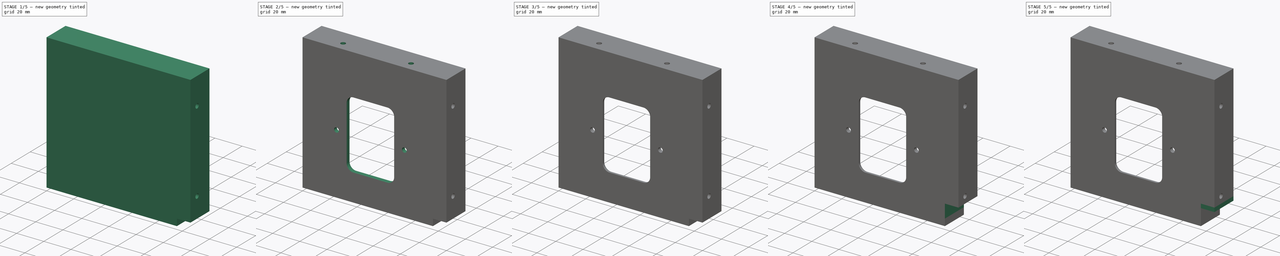
[diagram: build sequence overview — one tinted view per stage of 5, left to right]
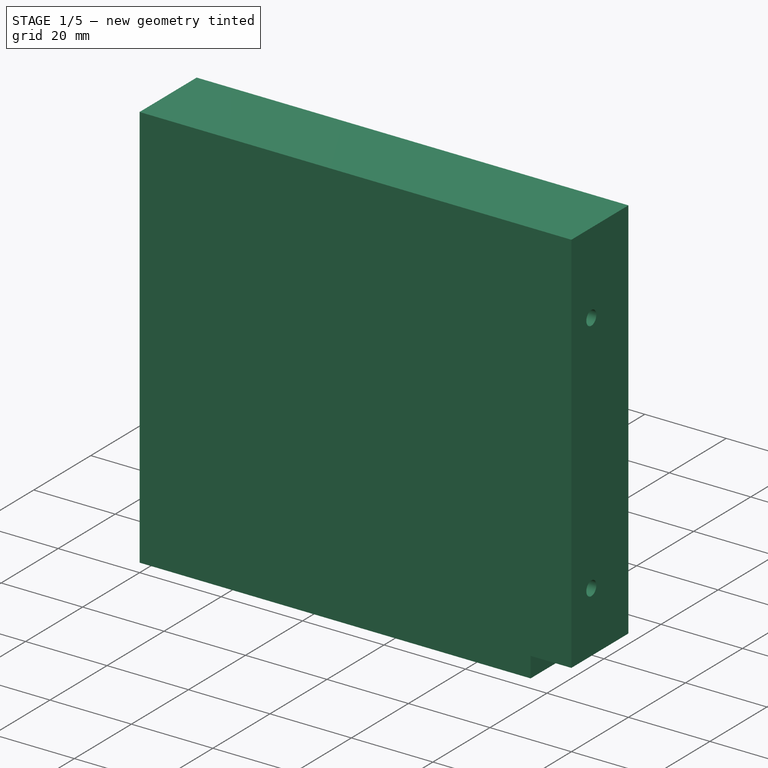
[diagram: stage 1 of 5 — iso view after this stage's code; geometry added in this stage tinted green]
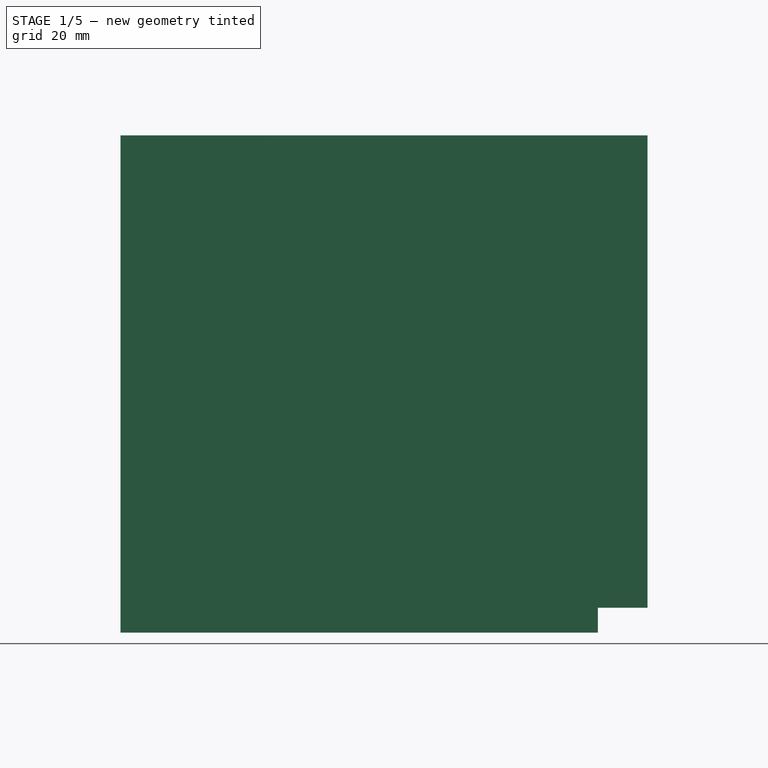
[diagram: stage 1 of 5 — front view after this stage's code; geometry added in this stage tinted green]
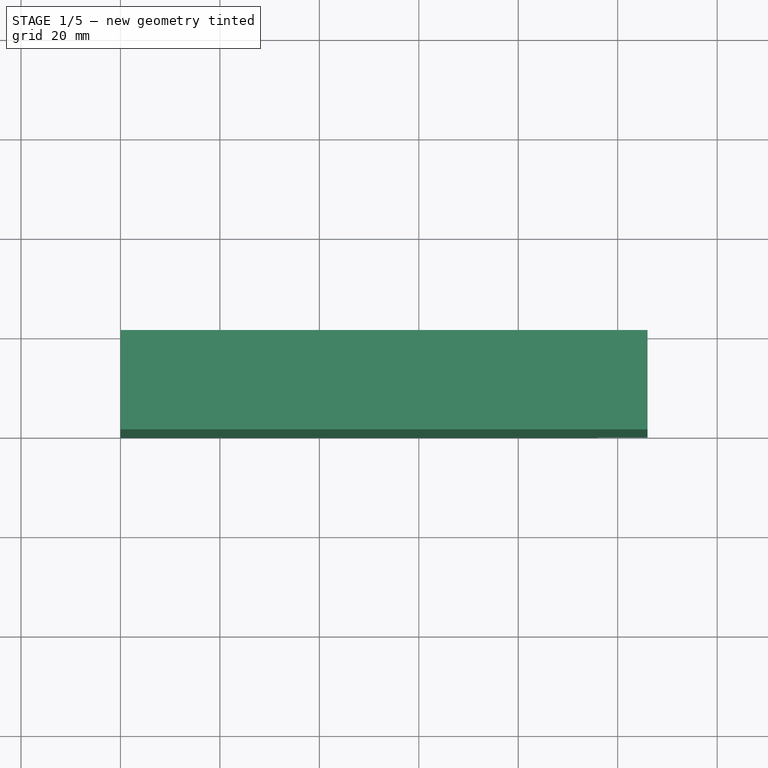
[diagram: stage 1 of 5 — top view after this stage's code; geometry added in this stage tinted green]
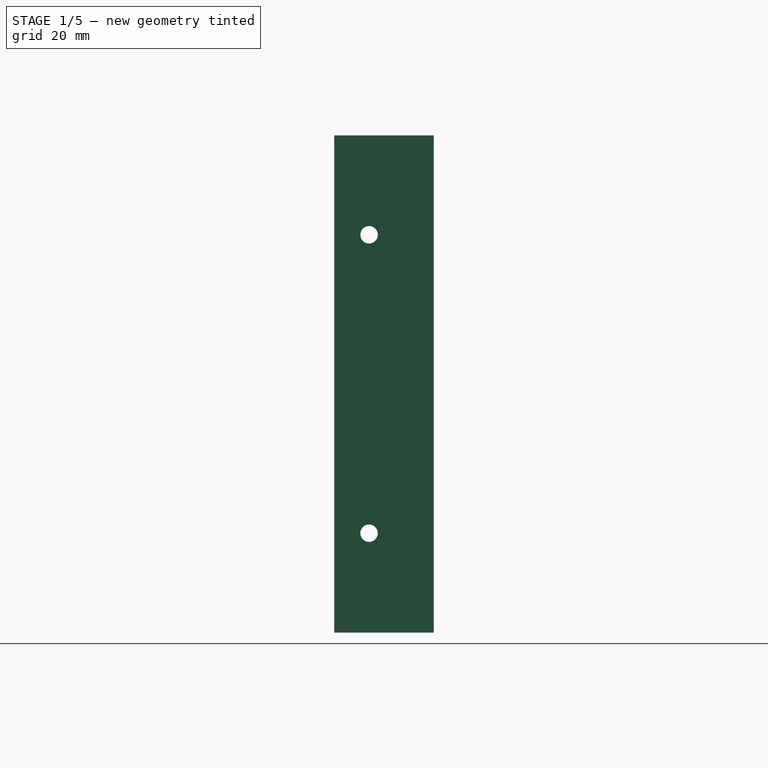
[diagram: stage 1 of 5 — right view after this stage's code; geometry added in this stage tinted green]
FCSTD DOCUMENT  (FreeCAD 0.21R33771 (Git))
Label: back_panel_adpter
License: All rights reserved
LicenseURL: http://en.wikipedia.org/wiki/All_rights_reserved
objects: PartDesign::Pocket×8, Sketcher::SketchObject×7, PartDesign::Pad×6, PartDesign::Fillet×5, PartDesign::Body×1
note: 46 computed .brp shape members not serialized (recipe doc carries the construction recipe); baked Part::Feature solids carry a one-line shape summary decoded from their .brp

FEATURE [Sketcher::SketchObject] Sketch
  FullyConstrained = true
  MapMode = 5
  Support = -> [XY_Plane]
  sketch-geometry (4):
    g0: LineSegment StartX=0 StartY=0 StartZ=0 EndX=96 EndY=0 EndZ=0
    g1: LineSegment StartX=96 StartY=0 StartZ=0 EndX=96 EndY=10 EndZ=0
    g2: LineSegment StartX=96 StartY=10 StartZ=0 EndX=0 EndY=10 EndZ=0
    g3: LineSegment StartX=0 StartY=10 StartZ=0 EndX=0 EndY=0 EndZ=0
  constraints (11):
    c: Coincident(g0,g1)
    c: Coincident(g1,g2)
    c: Coincident(g2,g3)
    c: Coincident(g3,g0)
    c: Horizontal(g0)
    c: Horizontal(g2)
    c: Vertical(g1)
    c: Vertical(g3)
    c: Coincident(g0,g-1)
    c: DistanceX(g0,g0) = 96
    c: DistanceY(g1,g1) = 10
FEATURE [PartDesign::Pad] Pad
  Direction = (0,0,1)
  Length = 100
  Length2 = 10
  Profile = -> Sketch
  ReferenceAxis = -> Sketch [N_Axis]
  Type = 0
FEATURE [Sketcher::SketchObject] Sketch001
  FullyConstrained = true
  MapMode = 5
  Placement = pos=(96,0,0) rot=(0.57735,0.57735,0.57735;2.0944rad)
  Support = -> [Pad]
  sketch-geometry (4):
    g0: LineSegment StartX=0 StartY=100 StartZ=0 EndX=10 EndY=100 EndZ=0
    g1: LineSegment StartX=10 StartY=100 StartZ=0 EndX=10 EndY=5 EndZ=0
    g2: LineSegment StartX=10 StartY=5 StartZ=0 EndX=0 EndY=5 EndZ=0
    g3: LineSegment StartX=0 StartY=5 StartZ=0 EndX=0 EndY=100 EndZ=0
  constraints (12):
    c: Coincident(g0,g1)
    c: Coincident(g1,g2)
    c: Coincident(g2,g3)
    c: Coincident(g3,g0)
    c: Horizontal(g0)
    c: Horizontal(g2)
    c: Vertical(g1)
    c: Vertical(g3)
    c: PointOnObject(g0,g-2)
    c: DistanceY(g-1,g2) = 5
    c: DistanceX(g2,g2) = 10
    c: DistanceY(g1,g1) = 95
FEATURE [PartDesign::Pad] Pad001
  BaseFeature = -> Pad
  Direction = (1,0,0)
  Length = 10
  Length2 = 10
  Profile = -> Sketch001
  ReferenceAxis = -> Sketch001 [N_Axis]
  Type = 0
FEATURE [PartDesign::Pad] Pad002
  BaseFeature = -> Pad001
  Direction = (0,1,0)
  Length = 10
  Length2 = 10
  Profile = -> Pad001 [Face7,Face11]
  Type = 0
FEATURE [Sketcher::SketchObject] Sketch002
  FullyConstrained = true
  MapMode = 5
  Placement = pos=(0,0,0) rot=(0.57735,-0.57735,-0.57735;2.0944rad)
  Support = -> [Pad002]
  sketch-geometry (10):
    g0: LineSegment StartX=0 StartY=0 StartZ=0 EndX=-7 EndY=0 EndZ=0
    g1: LineSegment StartX=-7 StartY=0 StartZ=0 EndX=-7 EndY=80 EndZ=0
    g2: LineSegment StartX=-7 StartY=80 StartZ=0 EndX=0 EndY=80 EndZ=0
    g3: LineSegment StartX=0 StartY=80 StartZ=0 EndX=0 EndY=0 EndZ=0
    g4: LineSegment StartX=-7 StartY=80 StartZ=0 EndX=0 EndY=80 EndZ=0
    g5: LineSegment StartX=0 StartY=80 StartZ=0 EndX=0 EndY=20 EndZ=0
    g6: LineSegment StartX=0 StartY=20 StartZ=0 EndX=-7 EndY=20 EndZ=0
    g7: LineSegment StartX=-7 StartY=20 StartZ=0 EndX=-7 EndY=80 EndZ=0
    g8: Circle CenterX=-7 CenterY=80 CenterZ=0 NormalX=0 NormalY=0 NormalZ=1 AngleXU=0 Radius=1.75
    g9: Circle CenterX=-7 CenterY=20 CenterZ=0 NormalX=0 NormalY=0 NormalZ=1 AngleXU=0 Radius=1.75
  constraints (26):
    c: Coincident(g0,g1)
    c: Coincident(g1,g2)
    c: Coincident(g2,g3)
    c: Coincident(g3,g0)
    c: Horizontal(g0)
    c: Horizontal(g2)
    c: Vertical(g1)
    c: Vertical(g3)
    c: Coincident(g0,g-1)
    c: DistanceX(g2,g2) = 7
    c: DistanceY(g3,g3) = 80
    c: Coincident(g4,g5)
    c: Coincident(g5,g6)
    c: Coincident(g6,g7)
    c: Coincident(g7,g4)
    c: Horizontal(g4)
    c: Horizontal(g6)
    c: Vertical(g5)
    c: Vertical(g7)
    c: Coincident(g4,g1)
    c: PointOnObject(g5,g3)
    c: DistanceY(g6,g1) = 60
    c: Coincident(g8,g1)
    c: Coincident(g9,g6)
    c: Equal(g8,g9)
    c: Diameter(g8) = 3.5
FEATURE [PartDesign::Pocket] Pocket
  BaseFeature = -> Pad002
  Direction = (1,0,0)
  Length = 5
  Length2 = 5
  Profile = -> Sketch002
  ReferenceAxis = -> Sketch002 [N_Axis]
  Type = 1
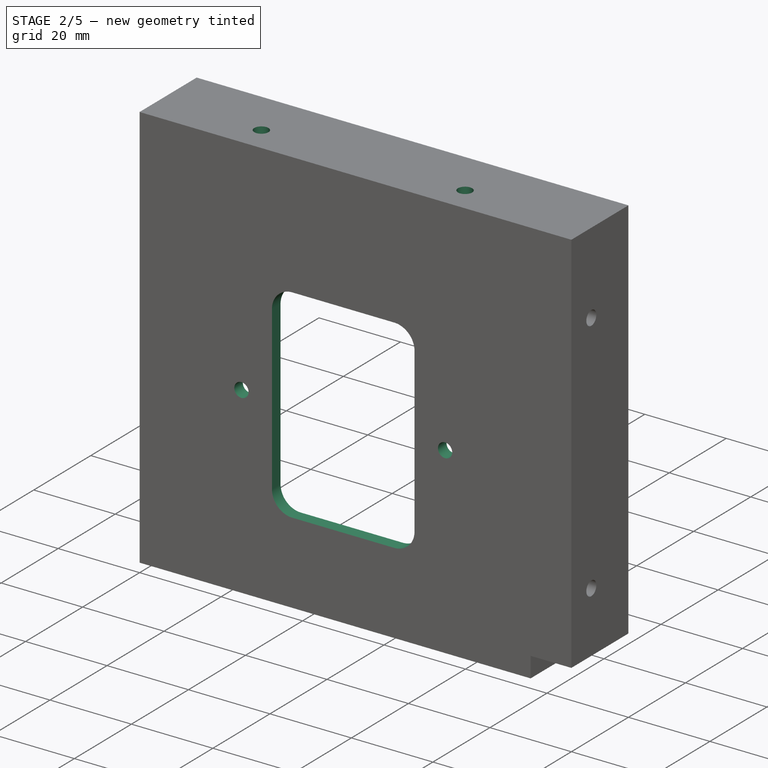
[diagram: stage 2 of 5 — iso view after this stage's code; geometry added in this stage tinted green]
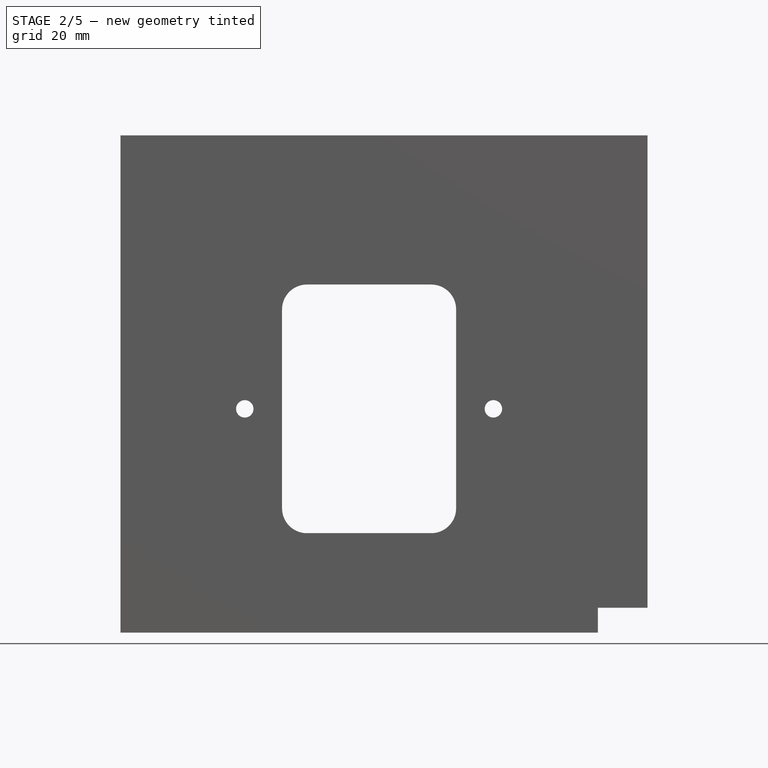
[diagram: stage 2 of 5 — front view after this stage's code; geometry added in this stage tinted green]
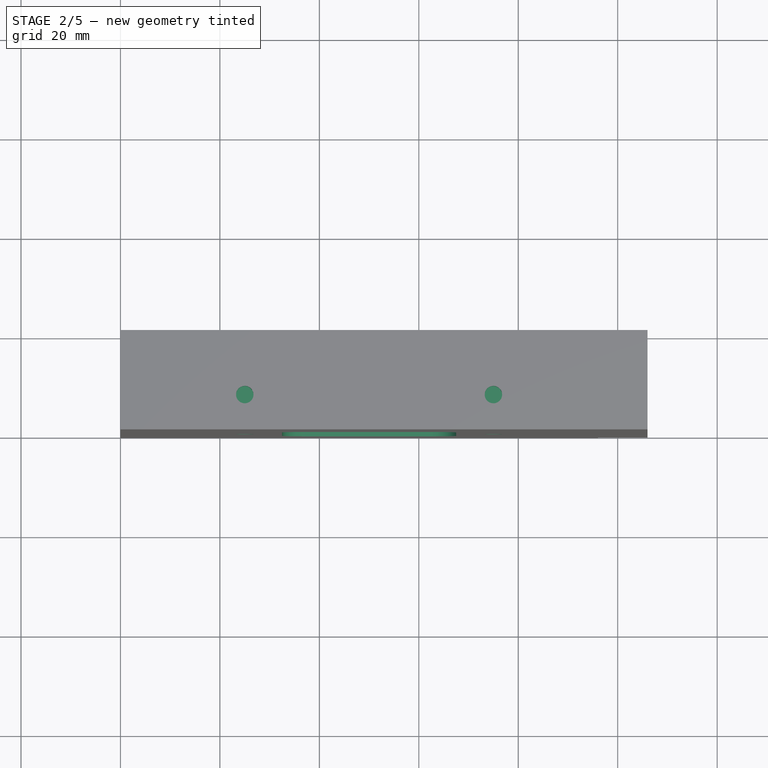
[diagram: stage 2 of 5 — top view after this stage's code; geometry added in this stage tinted green]
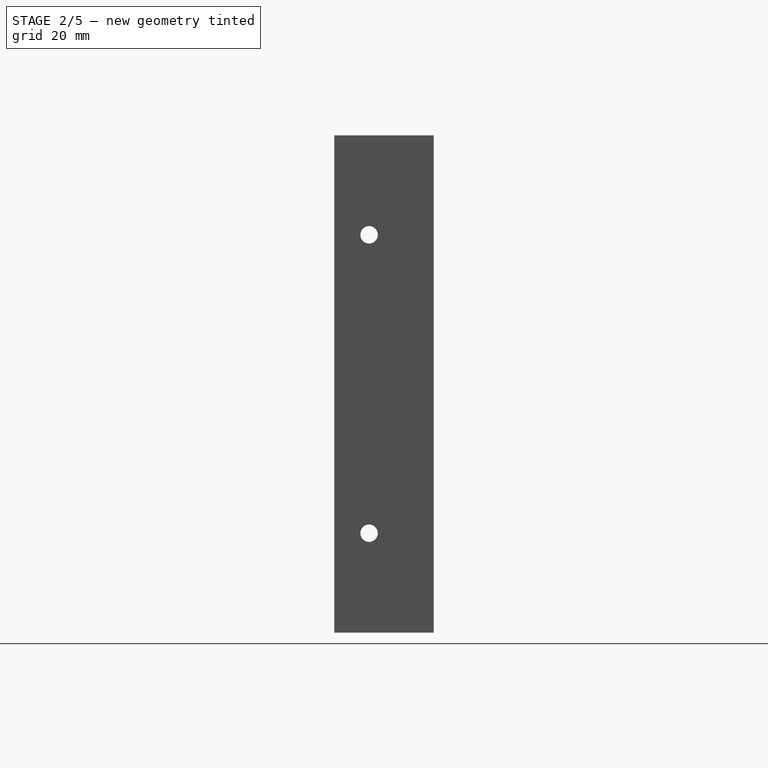
[diagram: stage 2 of 5 — right view after this stage's code; geometry added in this stage tinted green]
FEATURE [Sketcher::SketchObject] Sketch003
  FullyConstrained = true
  MapMode = 5
  Placement = pos=(0,20,0) rot=(0,0.707107,0.707107;3.14159rad)
  Support = -> [Pocket]
  sketch-geometry (4):
    g0: LineSegment StartX=-93 StartY=97 StartZ=0 EndX=-3 EndY=97 EndZ=0
    g1: LineSegment StartX=-3 StartY=97 StartZ=0 EndX=-3 EndY=3 EndZ=0
    g2: LineSegment StartX=-3 StartY=3 StartZ=0 EndX=-93 EndY=3 EndZ=0
    g3: LineSegment StartX=-93 StartY=3 StartZ=0 EndX=-93 EndY=97 EndZ=0
  constraints (12):
    c: Coincident(g0,g1)
    c: Coincident(g1,g2)
    c: Coincident(g2,g3)
    c: Coincident(g3,g0)
    c: Horizontal(g0)
    c: Horizontal(g2)
    c: Vertical(g1)
    c: Vertical(g3)
    c: DistanceX(g1,g-1) = 3
    c: DistanceY(g-1,g1) = 3
    c: DistanceY(g1,g1) = 94
    c: DistanceX(g0,g0) = 90
FEATURE [PartDesign::Pocket] Pocket001
  BaseFeature = -> Pocket
  Direction = (0,-1,2e-16)
  Length = 17
  Length2 = 5
  Profile = -> Sketch003
  ReferenceAxis = -> Sketch003 [N_Axis]
  Type = 0
FEATURE [Sketcher::SketchObject] Sketch004
  FullyConstrained = true
  MapMode = 5
  Placement = pos=(0,20,0) rot=(0,0.707107,0.707107;3.14159rad)
  Support = -> [Pocket001]
  sketch-geometry (4):
    g0: LineSegment StartX=-103 StartY=97 StartZ=0 EndX=-93 EndY=97 EndZ=0
    g1: LineSegment StartX=-93 StartY=97 StartZ=0 EndX=-93 EndY=8 EndZ=0
    g2: LineSegment StartX=-93 StartY=8 StartZ=0 EndX=-103 EndY=8 EndZ=0
    g3: LineSegment StartX=-103 StartY=8 StartZ=0 EndX=-103 EndY=97 EndZ=0
  constraints (12):
    c: Coincident(g0,g1)
    c: Coincident(g1,g2)
    c: Coincident(g2,g3)
    c: Coincident(g3,g0)
    c: Horizontal(g0)
    c: Horizontal(g2)
    c: Vertical(g1)
    c: Vertical(g3)
    c: DistanceX(g2,g2) = 10
    c: DistanceX(g1,g-1) = 93
    c: DistanceY(g-1,g0) = 97
    c: DistanceY(g-1,g1) = 8
FEATURE [PartDesign::Pocket] Pocket002
  BaseFeature = -> Pocket001
  Direction = (0,-1,2e-16)
  Length = 0
  Length2 = 5
  Profile = -> Sketch004
  ReferenceAxis = -> Sketch004 [N_Axis]
  Type = 3
  UpToFace = -> Pocket001 [Face27]
FEATURE [Sketcher::SketchObject] Sketch005
  FullyConstrained = true
  MapMode = 5
  Placement = pos=(0,3,-7e-16) rot=(0,0.707107,0.707107;3.14159rad)
  Support = -> [Pocket002]
  sketch-geometry (19):
    g0: LineSegment StartX=-62.5 StartY=65 StartZ=0 EndX=-62.5 EndY=25 EndZ=0
    g1: LineSegment StartX=-62.5 StartY=25 StartZ=0 EndX=-37.5 EndY=25 EndZ=0
    g2: LineSegment StartX=-37.5 StartY=25 StartZ=0 EndX=-37.5 EndY=65 EndZ=0
    g3: LineSegment StartX=-37.5 StartY=65 StartZ=0 EndX=-62.5 EndY=65 EndZ=0
    g4: GeomPoint X=-50 Y=45 Z=0
    g5: ArcOfCircle CenterX=-62.5 CenterY=65 CenterZ=0 NormalX=0 NormalY=0 NormalZ=1 AngleXU=0 Radius=5 StartAngle=1.5708 EndAngle=3.14159
    g6: LineSegment StartX=-62.5 StartY=70 StartZ=0 EndX=-37.5 EndY=70 EndZ=0
    g7: ArcOfCircle CenterX=-37.5 CenterY=65 CenterZ=0 NormalX=0 NormalY=0 NormalZ=1 AngleXU=0 Radius=5 StartAngle=-9e-16 EndAngle=1.5708
    g8: LineSegment StartX=-32.5 StartY=65 StartZ=0 EndX=-32.5 EndY=25 EndZ=0
    g9: ArcOfCircle CenterX=-37.5 CenterY=25 CenterZ=0 NormalX=0 NormalY=0 NormalZ=1 AngleXU=0 Radius=5 StartAngle=4.71239 EndAngle=6.28319
    g10: LineSegment StartX=-37.5 StartY=20 StartZ=0 EndX=-62.5 EndY=20 EndZ=0
    g11: ArcOfCircle CenterX=-62.5 CenterY=25 CenterZ=0 NormalX=0 NormalY=0 NormalZ=1 AngleXU=0 Radius=5 StartAngle=3.14159 EndAngle=4.71239
    g12: LineSegment StartX=-67.5 StartY=25 StartZ=0 EndX=-67.5 EndY=65 EndZ=0
    g13: GeomPoint X=-67.5 Y=70 Z=0
    g14: GeomPoint X=-32.5 Y=20 Z=0
    g15: LineSegment StartX=-75 StartY=45 StartZ=0 EndX=-50 EndY=45 EndZ=0
    g16: LineSegment StartX=-25 StartY=45 StartZ=0 EndX=-50 EndY=45 EndZ=0
    g17: Circle CenterX=-75 CenterY=45 CenterZ=0 NormalX=0 NormalY=0 NormalZ=1 AngleXU=0 Radius=1.75
    g18: Circle CenterX=-25 CenterY=45 CenterZ=0 NormalX=0 NormalY=0 NormalZ=1 AngleXU=0 Radius=1.75
  constraints (45):
    c: Coincident(g0,g1)
    c: Coincident(g1,g2)
    c: Coincident(g2,g3)
    c: Coincident(g3,g0)
    c: Horizontal(g1)
    c: Horizontal(g3)
    c: Vertical(g0)
    c: Vertical(g2)
    c: Symmetric(g1,g0,g4)
    c: DistanceX(g4,g-1) = 50
    c: DistanceY(g-1,g4) = 45
    c: DistanceY(g2,g2) = 40
    c: DistanceX(g1,g1) = 25
    c: Tangent(g5,g6) = 1.5708
    c: Tangent(g6,g7) = 1.5708
    c: Tangent(g7,g8) = 1.5708
    c: Tangent(g8,g9) = 1.5708
    c: Tangent(g9,g10) = 1.5708
    c: Tangent(g10,g11) = 1.5708
    c: Tangent(g11,g12) = 1.5708
    c: Tangent(g12,g5) = 1.5708
    c: Horizontal(g6)
    c: Horizontal(g10)
    c: Vertical(g8)
    c: Vertical(g12)
    c: Equal(g5,g7)
    c: Equal(g7,g9)
    c: Equal(g9,g11)
    c: PointOnObject(g13,g6)
    c: PointOnObject(g13,g12)
    c: PointOnObject(g14,g8)
    c: PointOnObject(g14,g10)
    c: Radius(g9) = 5
    c: Coincident(g9,g1)
    c: Coincident(g0,g5)
    c: Horizontal(g15)
    c: Horizontal(g16)
    c: Coincident(g16,g15)
    c: Coincident(g15,g4)
    c: Equal(g16,g15)
    c: Coincident(g17,g15)
    c: Coincident(g18,g16)
    c: Equal(g18,g17)
    c: Diameter(g18) = 3.5
    c: DistanceX(g16,g16) = 25
FEATURE [PartDesign::Pocket] Pocket003
  BaseFeature = -> Pocket002
  Direction = (0,-1,2e-16)
  Length = 5
  Length2 = 5
  Profile = -> Sketch005
  ReferenceAxis = -> Sketch005 [N_Axis]
  Type = 0
FEATURE [Sketcher::SketchObject] Sketch006
  FullyConstrained = true
  MapMode = 5
  Placement = pos=(0,0,100) rot=(0,0,1;0rad)
  Support = -> [Pocket003]
  sketch-geometry (3):
    g0: LineSegment StartX=25 StartY=7 StartZ=0 EndX=75 EndY=7 EndZ=0
    g1: Circle CenterX=75 CenterY=7 CenterZ=0 NormalX=0 NormalY=0 NormalZ=1 AngleXU=0 Radius=1.75
    g2: Circle CenterX=25 CenterY=7 CenterZ=0 NormalX=0 NormalY=0 NormalZ=1 AngleXU=0 Radius=1.75
  constraints (8):
    c: Horizontal(g0)
    c: DistanceX(g0,g0) = 50
    c: DistanceX(g-1,g0) = 25
    c: DistanceY(g-1,g0) = 7
    c: Coincident(g1,g0)
    c: Coincident(g2,g0)
    c: Equal(g2,g1)
    c: Diameter(g2) = 3.5
FEATURE [PartDesign::Pocket] Pocket004
  BaseFeature = -> Pocket003
  Direction = (0,0,-1)
  Length = 5
  Length2 = 5
  Profile = -> Sketch006
  ReferenceAxis = -> Sketch006 [N_Axis]
  Type = 0
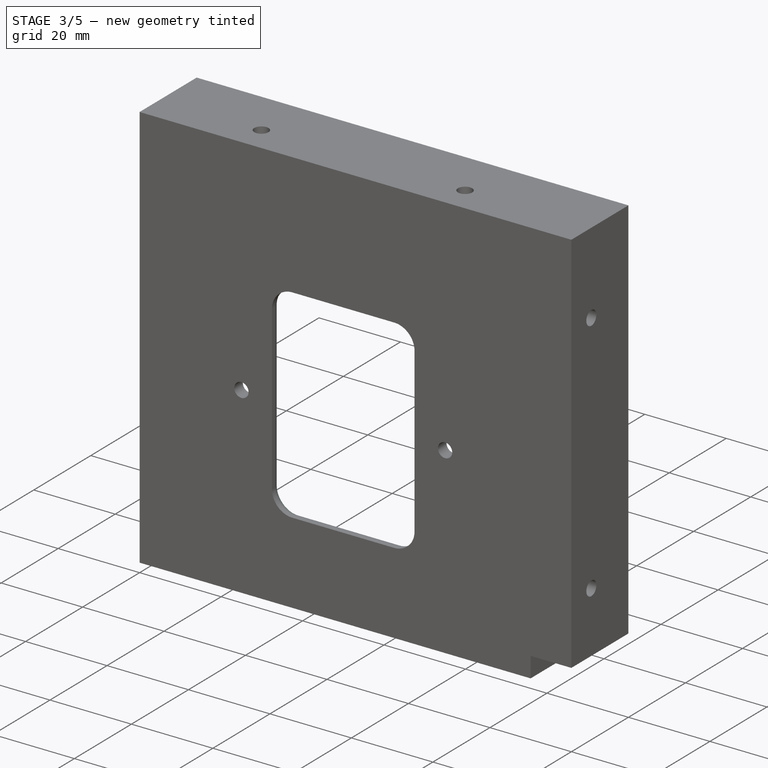
[diagram: stage 3 of 5 — iso view after this stage's code; geometry added in this stage tinted green]
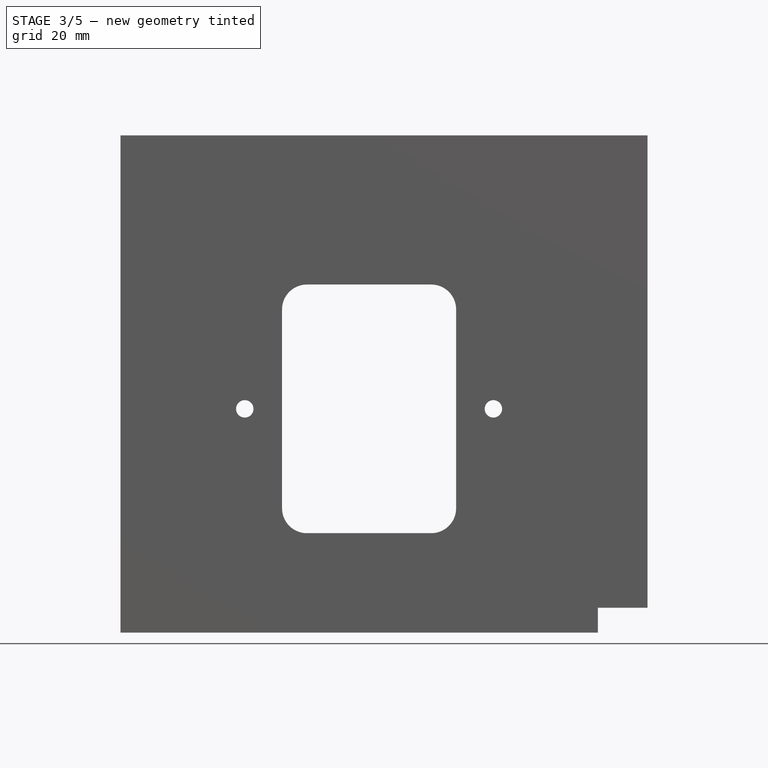
[diagram: stage 3 of 5 — front view after this stage's code; geometry added in this stage tinted green]
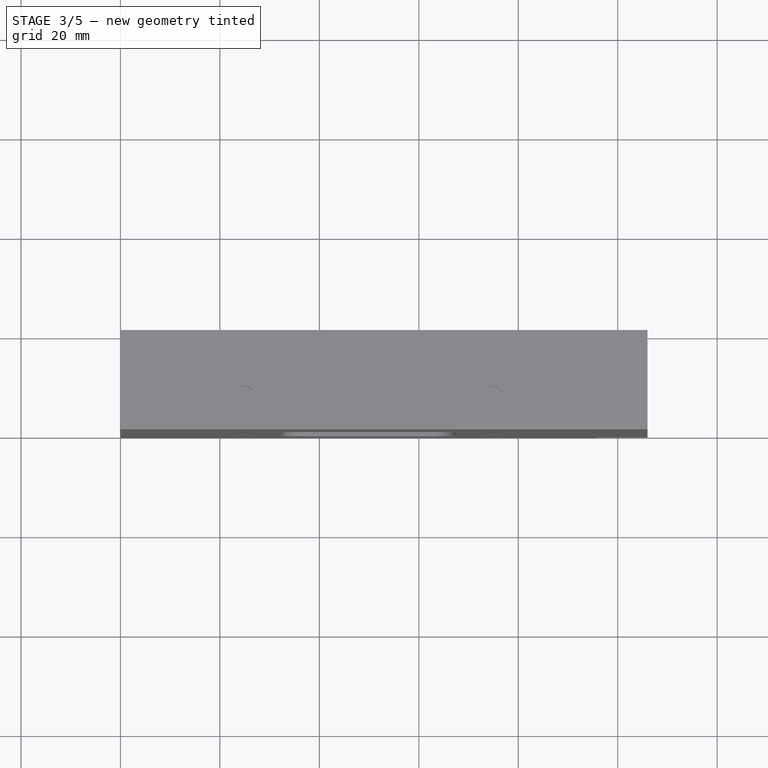
[diagram: stage 3 of 5 — top view after this stage's code; geometry added in this stage tinted green]
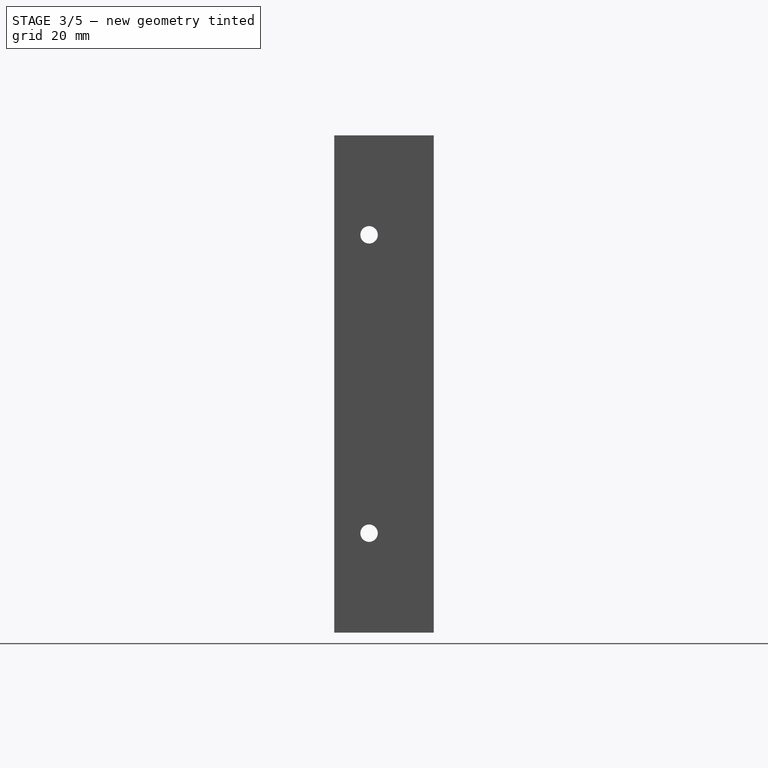
[diagram: stage 3 of 5 — right view after this stage's code; geometry added in this stage tinted green]
FEATURE [PartDesign::Fillet] Fillet
  Base = -> Pocket004 [Edge104,Edge105,Edge110]
  BaseFeature = -> Pocket004
  Radius = 2
  SupportTransform = false
  UseAllEdges = false
FEATURE [PartDesign::Fillet] Fillet001
  Base = -> Fillet [Edge73,Edge30,Edge29]
  BaseFeature = -> Fillet
  Radius = 2
  SupportTransform = false
  UseAllEdges = false
FEATURE [PartDesign::Fillet] Fillet002
  Base = -> Fillet001 [Edge12,Edge11,Edge18,Edge17,Edge16,Edge15,Edge14,Edge13]
  BaseFeature = -> Fillet001
  Radius = 2
  SupportTransform = false
  UseAllEdges = false
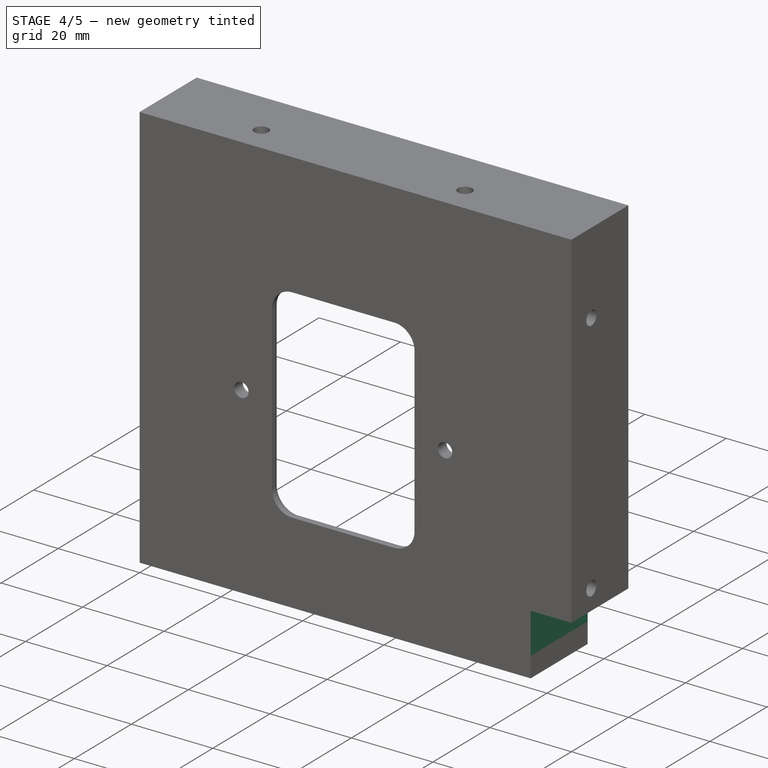
[diagram: stage 4 of 5 — iso view after this stage's code; geometry added in this stage tinted green]
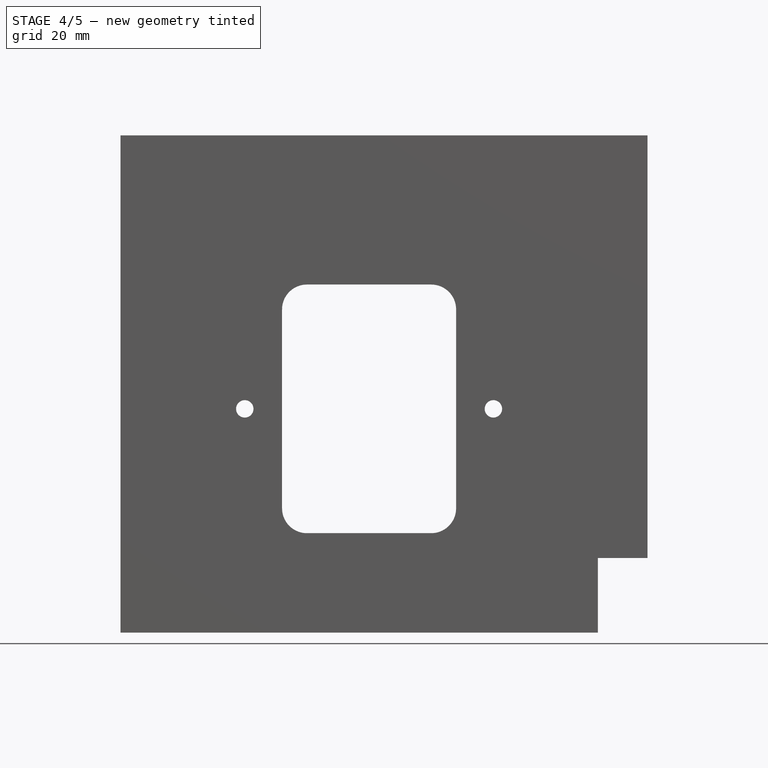
[diagram: stage 4 of 5 — front view after this stage's code; geometry added in this stage tinted green]
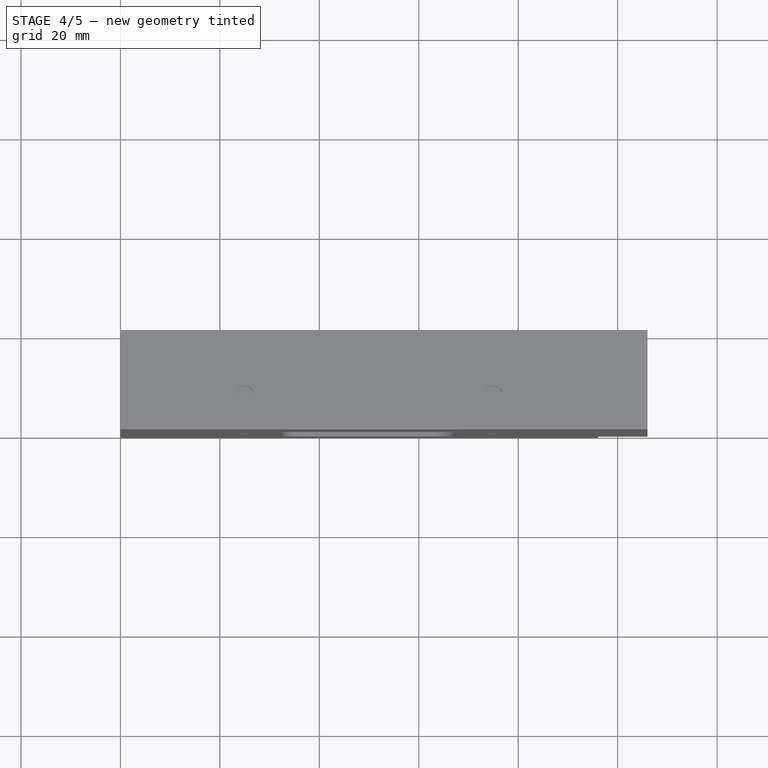
[diagram: stage 4 of 5 — top view after this stage's code; geometry added in this stage tinted green]
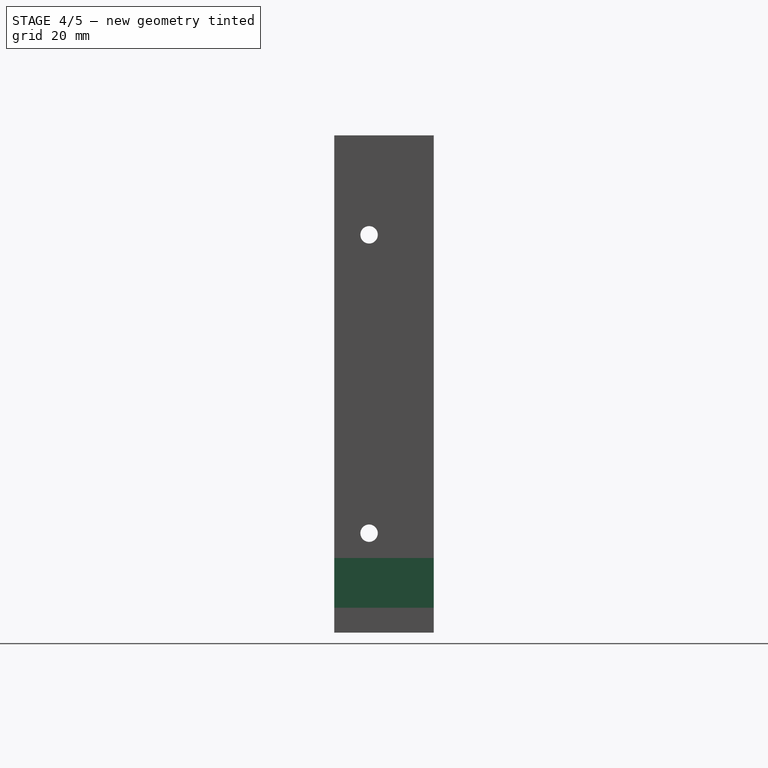
[diagram: stage 4 of 5 — right view after this stage's code; geometry added in this stage tinted green]
FEATURE [PartDesign::Pocket] Pocket005
  BaseFeature = -> Fillet002
  Direction = (0,0,1)
  Length = 5
  Length2 = 5
  Profile = -> Fillet002 [Face57,Face53]
  Type = 0
FEATURE [PartDesign::Pocket] Pocket006
  BaseFeature = -> Pocket005
  Direction = (-1,0,0)
  Length = 2
  Length2 = 5
  Profile = -> Pocket005 [Face41,Face35]
  Type = 0
FEATURE [PartDesign::Pocket] Pocket007
  BaseFeature = -> Pocket006
  Direction = (0,0,1)
  Length = 5
  Length2 = 5
  Profile = -> Pocket006 [Face36,Face52,Face35]
  Type = 0
FEATURE [PartDesign::Pad] Pad003
  BaseFeature = -> Pocket007
  Direction = (0,0,1)
  Length = 10
  Length2 = 10
  Profile = -> Pocket007 [Face50,Face43]
  Type = 0
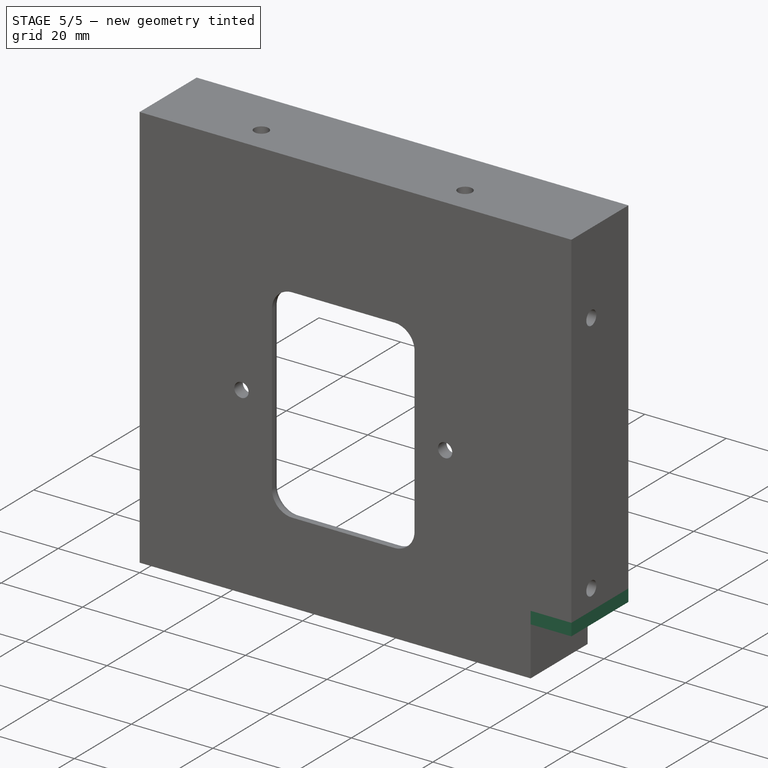
[diagram: stage 5 of 5 — iso view after this stage's code; geometry added in this stage tinted green]
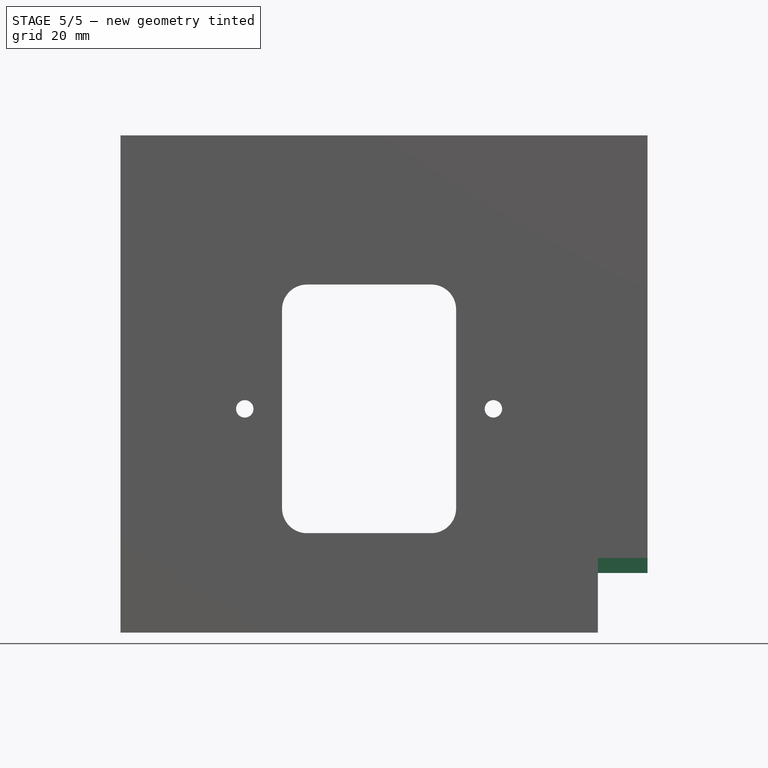
[diagram: stage 5 of 5 — front view after this stage's code; geometry added in this stage tinted green]
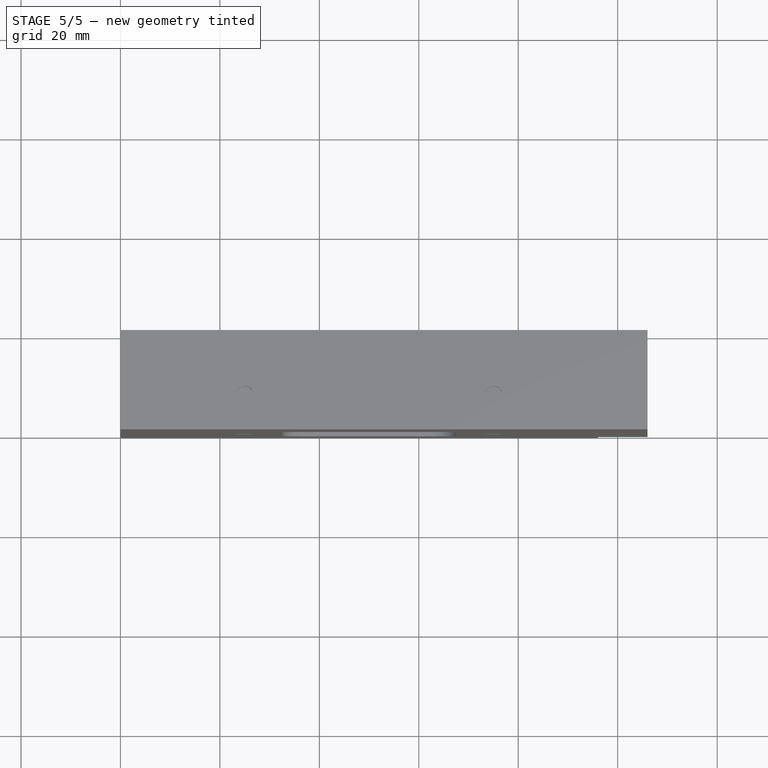
[diagram: stage 5 of 5 — top view after this stage's code; geometry added in this stage tinted green]
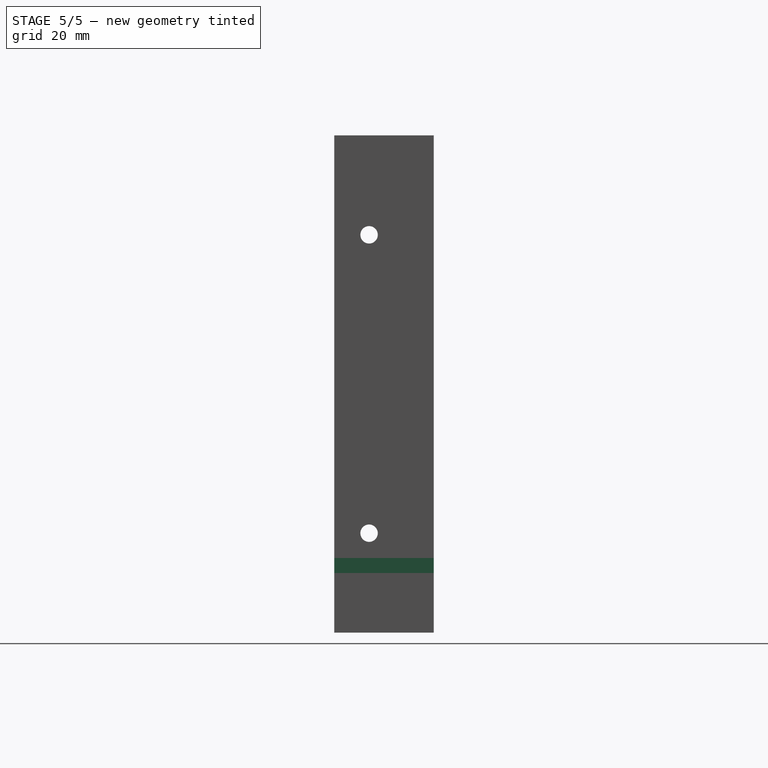
[diagram: stage 5 of 5 — right view after this stage's code; geometry added in this stage tinted green]
FEATURE [PartDesign::Pad] Pad004
  BaseFeature = -> Pad003
  Direction = (0,0,-1)
  Length = 3
  Length2 = 10
  Profile = -> Pad003 [Face36,Face53]
  Type = 0
FEATURE [PartDesign::Pad] Pad005
  BaseFeature = -> Pad004
  Direction = (-1,0,0)
  Length = 7
  Length2 = 10
  Profile = -> Pad004 [Face51,Face53]
  Type = 0
FEATURE [PartDesign::Fillet] Fillet003
  Base = -> Pad005 [Edge144,Edge103]
  BaseFeature = -> Pad005
  Radius = 1
  SupportTransform = false
  UseAllEdges = false
FEATURE [PartDesign::Fillet] Fillet004
  Base = -> Fillet003 [Edge27,Edge21]
  BaseFeature = -> Fillet003
  Radius = 1
  SupportTransform = false
  UseAllEdges = false
FEATURE [PartDesign::Body] Body
  Group = -> [Sketch,Pad,Sketch001,Pad001,Pad002,Sketch002,Pocket,Sketch003,Pocket001,Sketch004,Pocket002,Sketch005,Pocket003,Sketch006,Pocket004,Fillet,Fillet001,Fillet002,Pocket005,Pocket006,Pocket007,Pad003,Pad004,Pad005,Fillet003,Fillet004]
  Origin = -> Origin
  Tip = -> Fillet004
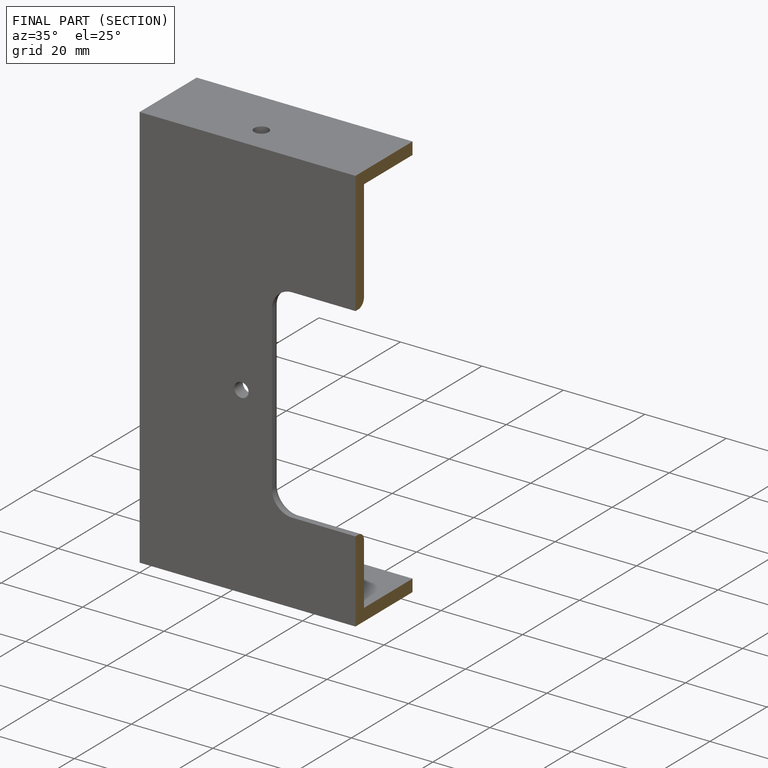
[diagram: finished part — half-section view (interior)]
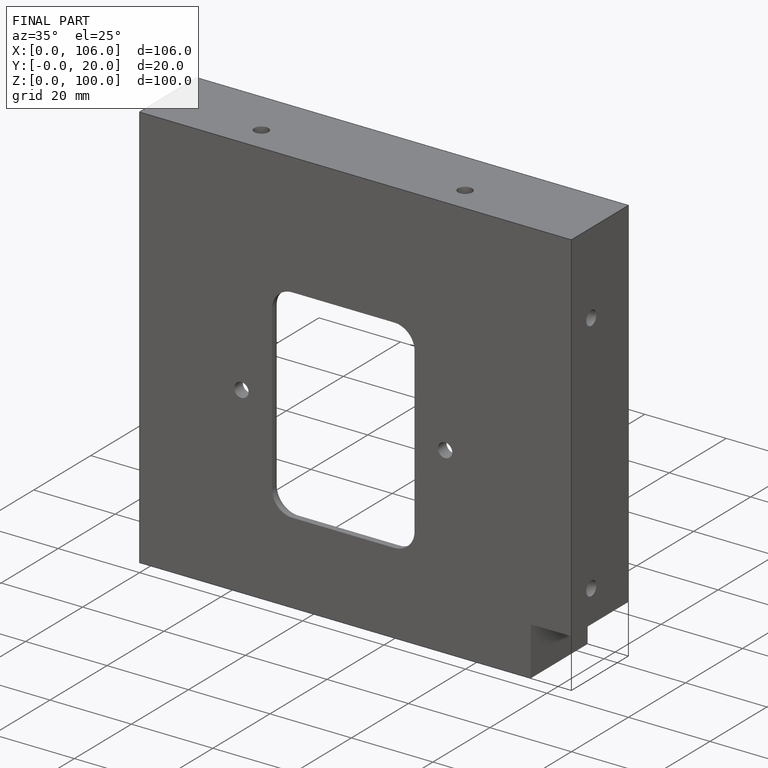
[diagram: finished part — iso view with bounding-box wireframe]
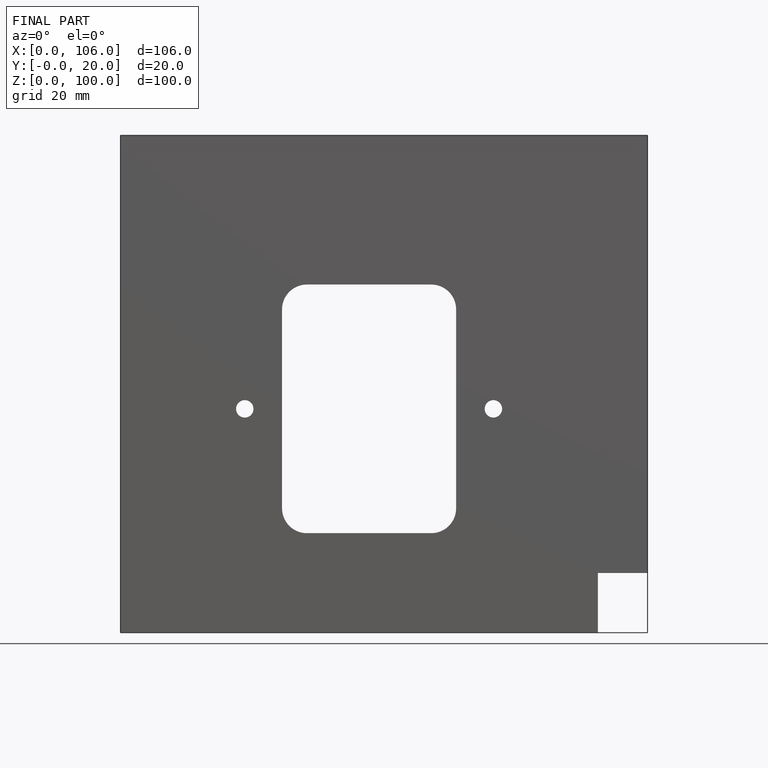
[diagram: finished part — front view with bounding-box wireframe]
